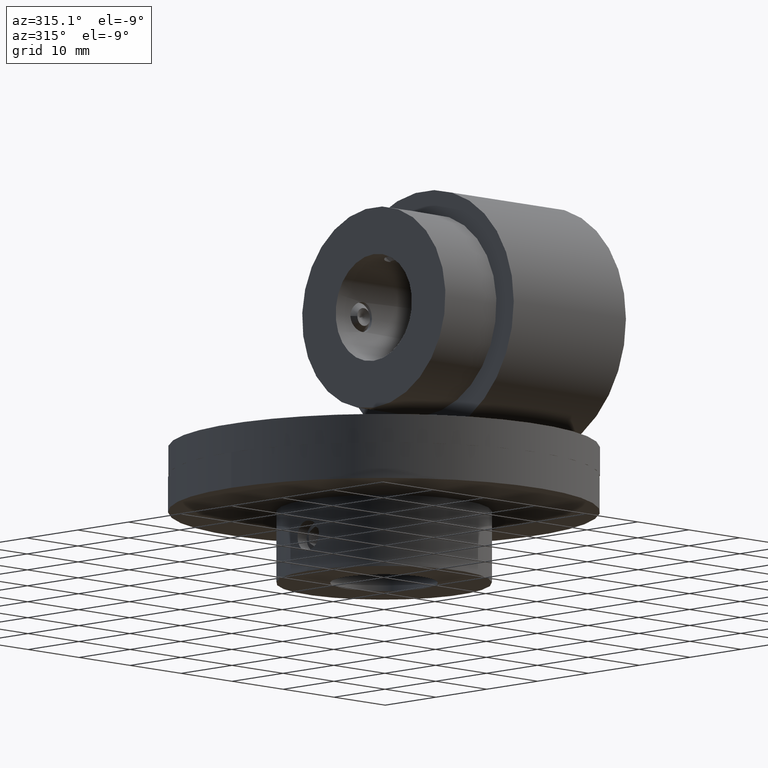
[diagram: clean part render]
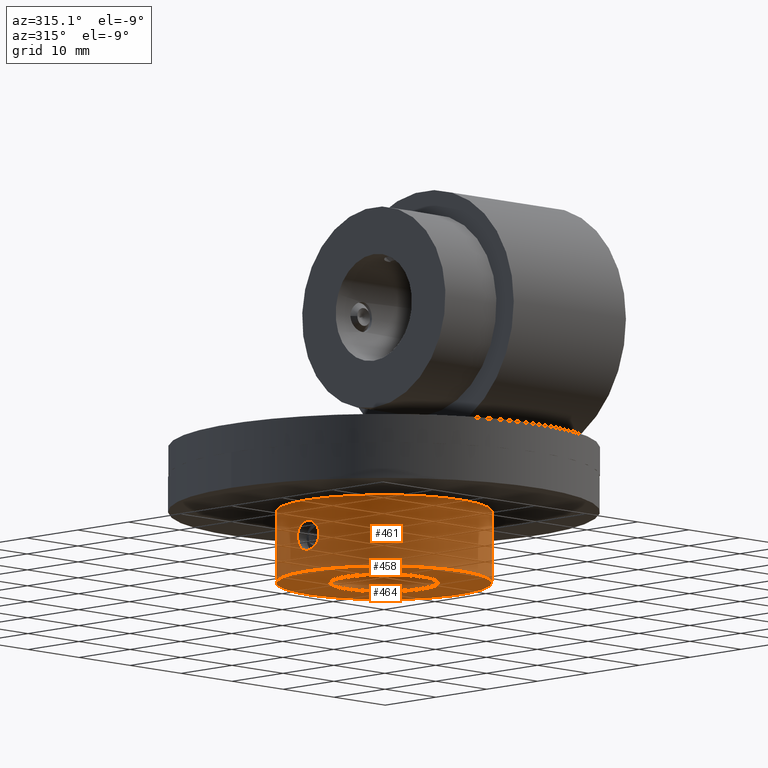
[diagram: same view with one multi-face feature highlighted, each face labeled with its STEP entity id]
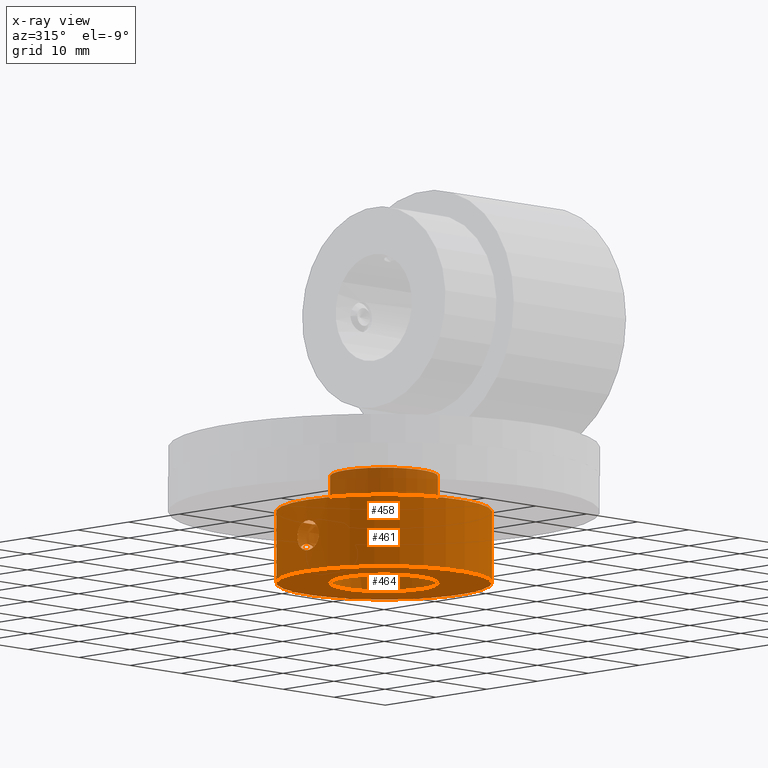
[diagram: x-ray of the same camera — body ghosted, the whole feature saturated]
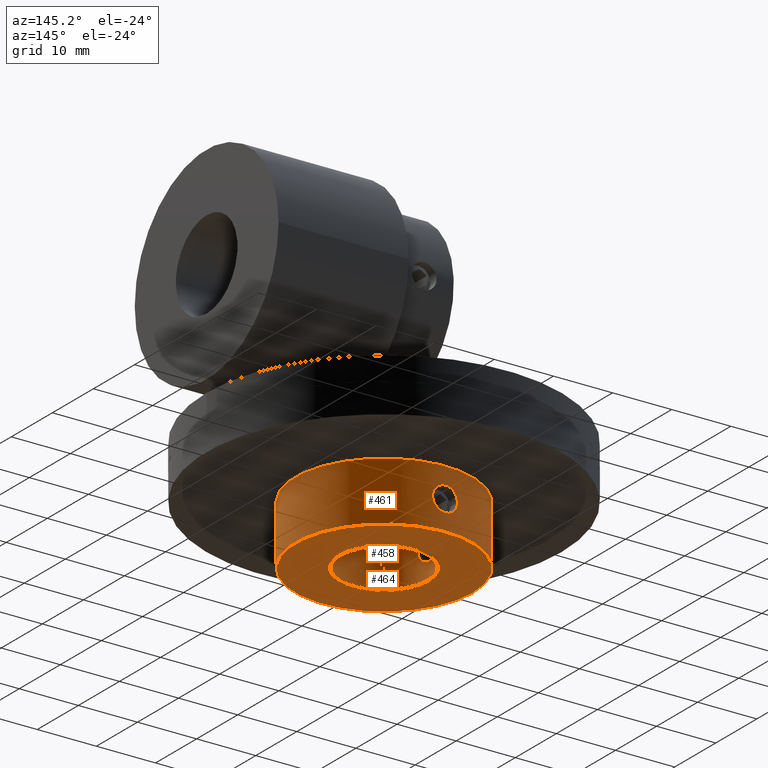
[diagram: same view with one multi-face feature highlighted, each face labeled with its STEP entity id]
A machine part, auxiliary view. The highlighted faces form ONE feature: a stepped (counterbored) hole: 2 coaxial cylindrical walls of radii 7.5 -> 15 mm joined by 1 annular planar shoulder face(s). The faces share edges in the B-rep.
The next image is the same camera in x-ray: the body ghosted and the whole hole feature saturated, so the bore chain is visible through the body.
A second angle (auxiliary view) of the same feature is appended — it is thin or edge-on in the first view.
Their STEP definitions:
[1] entity #461 (Cylinder):
#461 = ADVANCED_FACE( '', ( #560, #561, #562, #563 ), #564, .T. );
#560 = FACE_BOUND( '', #744, .T. );
#561 = FACE_BOUND( '', #745, .T. );
#562 = FACE_OUTER_BOUND( '', #746, .T. );
#563 = FACE_OUTER_BOUND( '', #747, .T. );
#564 = CYLINDRICAL_SURFACE( '', #748, 15.0000000000000 );
#744 = EDGE_LOOP( '', ( #944 ) );
#745 = EDGE_LOOP( '', ( #945 ) );
#746 = EDGE_LOOP( '', ( #946 ) );
#747 = EDGE_LOOP( '', ( #947 ) );
#748 = AXIS2_PLACEMENT_3D( '', #948, #949, #950 );
#944 = ORIENTED_EDGE( '', *, *, #1345, .T. );
#945 = ORIENTED_EDGE( '', *, *, #1344, .T. );
#946 = ORIENTED_EDGE( '', *, *, #1346, .F. );
#947 = ORIENTED_EDGE( '', *, *, #1347, .T. );
#948 = CARTESIAN_POINT( '', ( 0.000000000000000, 0.000000000000000, 17.5000000000000 ) );
#949 = DIRECTION( '', ( -0.000000000000000, -0.000000000000000, 1.00000000000000 ) );
#950 = DIRECTION( '', ( 1.00000000000000, -1.22460635382238E-016, 0.000000000000000 ) );
#1344 = EDGE_CURVE( '', #1470, #1470, #1471, .T. );
#1345 = EDGE_CURVE( '', #1472, #1472, #1473, .T. );
#1346 = EDGE_CURVE( '', #1474, #1474, #1475, .T. );
#1347 = EDGE_CURVE( '', #1476, #1476, #1477, .T. );
#1470 = VERTEX_POINT( '', #1784 );
#1471 = B_SPLINE_CURVE_WITH_KNOTS( '', 3, ( #1785, #1786, #1787, #1788, #1789, #1790, #1791, #1792, #1793, #1794, #1795, #1796, #1797, #1798, #1799, #1800, #1801, #1802, #1803, #1804, #1805, #1806, #1807, #1808, #1809, #1810, #1811, #1812, #1813, #1814, #1815, #1816, #1817, #1818, #1819, #1820, #1821, #1822, #1823, #1824, #1825, #1826, #1827, #1828, #1829, #1830, #1831, #1832, #1833, #1834, #1835, #1836, #1837, #1838, #1839, #1840 ), .UNSPECIFIED., .T., .F., ( 2, 2, 2, 2, 2, 2, 2, 2, 2, 2, 2, 2, 2, 2, 2, 2, 2, 2, 2, 2, 2, 2, 2, 2, 2, 2, 2, 2, 2, 2 ), ( -0.000821603352972537, 0.000000000000000, 0.000410801676486272, 0.000821603352972543, 0.00123240502945881, 0.00164320670594509, 0.00246481005891763, 0.00328641341189017, 0.00369721508837643, 0.00410801676486270, 0.00451881844134897, 0.00492962011783524, 0.00534042179432151, 0.00575122347080778, 0.00616202514729405, 0.00657282682378032, 0.00739443017675286, 0.00780523185323913, 0.00821603352972540, 0.00862683520621167, 0.00903763688269794, 0.00944843855918421, 0.00985924023567048, 0.0102700419121568, 0.0106808435886430, 0.0110916452651293, 0.0115024469416156, 0.0123240502945881, 0.0131456536475606, 0.0135564553240469 ), .UNSPECIFIED. );
#1472 = VERTEX_POINT( '', #1841 );
#1473 = B_SPLINE_CURVE_WITH_KNOTS( '', 3, ( #1842, #1843, #1844, #1845, #1846, #1847, #1848, #1849, #1850, #1851, #1852, #1853, #1854, #1855, #1856, #1857, #1858, #1859, #1860, #1861, #1862, #1863, #1864, #1865, #1866, #1867, #1868, #1869, #1870, #1871, #1872, #1873, #1874, #1875, #1876, #1877, #1878, #1879, #1880, #1881, #1882, #1883, #1884, #1885, #1886, #1887, #1888, #1889, #1890, #1891, #1892, #1893, #1894, #1895, #1896, #1897 ), .UNSPECIFIED., .T., .F., ( 2, 2, 2, 2, 2, 2, 2, 2, 2, 2, 2, 2, 2, 2, 2, 2, 2, 2, 2, 2, 2, 2, 2, 2, 2, 2, 2, 2, 2, 2 ), ( -0.000821603352972538, 0.000000000000000, 0.000410801676486271, 0.000821603352972543, 0.00123240502945881, 0.00164320670594509, 0.00246481005891762, 0.00328641341189016, 0.00369721508837643, 0.00410801676486270, 0.00451881844134897, 0.00492962011783524, 0.00534042179432151, 0.00575122347080778, 0.00616202514729405, 0.00657282682378032, 0.00739443017675286, 0.00780523185323913, 0.00821603352972539, 0.00862683520621167, 0.00903763688269794, 0.00944843855918421, 0.00985924023567048, 0.0102700419121567, 0.0106808435886430, 0.0110916452651293, 0.0115024469416156, 0.0123240502945881, 0.0131456536475606, 0.0135564553240469 ), .UNSPECIFIED. );
#1474 = VERTEX_POINT( '', #1898 );
#1475 = CIRCLE( '', #1899, 15.0000000000000 );
#1476 = VERTEX_POINT( '', #1900 );
#1477 = CIRCLE( '', #1901, 15.0000000000000 );
#1784 = CARTESIAN_POINT( '', ( -14.8522725533839, -2.10000000000000, 12.5000000000000 ) );
#1785 = CARTESIAN_POINT( '', ( -14.8522725533839, -2.10000000000000, 12.7778378907324 ) );
#1786 = CARTESIAN_POINT( '', ( -14.8522725533839, -2.10000000000000, 12.3610810546338 ) );
#1787 = CARTESIAN_POINT( '', ( -14.8542204500736, -2.08635151276940, 12.2245180858566 ) );
#1788 = CARTESIAN_POINT( '', ( -14.8616290817547, -2.03290650315306, 11.9559006806719 ) );
#1789 = CARTESIAN_POINT( '', ( -14.8671777857236, -1.99244889192282, 11.8224413460648 ) );
#1790 = CARTESIAN_POINT( '', ( -14.8809311568780, -1.88698590442380, 11.5682154149414 ) );
#1791 = CARTESIAN_POINT( '', ( -14.8890722858838, -1.82247402116182, 11.4476663378272 ) );
#1792 = CARTESIAN_POINT( '', ( -14.9069342648369, -1.67008859522858, 11.2195228317384 ) );
#1793 = CARTESIAN_POINT( '', ( -14.9167118280961, -1.58150558693305, 11.1116361513458 ) );
#1794 = CARTESIAN_POINT( '', ( -14.9455814970838, -1.29127861047529, 10.8214720910482 ) );
#1795 = CARTESIAN_POINT( '', ( -14.9648319428842, -1.05726121392647, 10.6650635412548 ) );
#1796 = CARTESIAN_POINT( '', ( -14.9919728032100, -0.552039691555255, 10.4554841010515 ) );
#1797 = CARTESIAN_POINT( '', ( -14.9999783968075, -0.275458407414224, 10.4001543085418 ) );
#1798 = CARTESIAN_POINT( '', ( -15.0000107321039, 0.135960827057759, 10.3999233421031 ) );
#1799 = CARTESIAN_POINT( '', ( -14.9980793158239, 0.275285483138546, 10.4135942472969 ) );
#1800 = CARTESIAN_POINT( '', ( -14.9907111751210, 0.544741888488198, 10.4672365270239 ) );
#1801 = CARTESIAN_POINT( '', ( -14.9853136530722, 0.675727983150398, 10.5069243534254 ) );
#1802 = CARTESIAN_POINT( '', ( -14.9716729120384, 0.930184822011966, 10.6122195474367 ) );
#1803 = CARTESIAN_POINT( '', ( -14.9634342008036, 1.05291911745352, 10.6778988190286 ) );
#1804 = CARTESIAN_POINT( '', ( -14.9456979745135, 1.28027879944217, 10.8297971448667 ) );
#1805 = CARTESIAN_POINT( '', ( -14.9361098570476, 1.38647291293803, 10.9166935626267 ) );
#1806 = CARTESIAN_POINT( '', ( -14.9166322601423, 1.58232955347063, 11.1124123101036 ) );
#1807 = CARTESIAN_POINT( '', ( -14.9070443942181, 1.66909845078462, 11.2182821475108 ) );
#1808 = CARTESIAN_POINT( '', ( -14.8892287894239, 1.82118869582327, 11.4455038994824 ) );
#1809 = CARTESIAN_POINT( '', ( -14.8809241039296, 1.88704082981921, 11.5683342171010 ) );
#1810 = CARTESIAN_POINT( '', ( -14.8671768866817, 1.99245494313765, 11.8224695401711 ) );
#1811 = CARTESIAN_POINT( '', ( -14.8617187545363, 2.03225386632195, 11.9533590563559 ) );
#1812 = CARTESIAN_POINT( '', ( -14.8542493241126, 2.08614887609154, 12.2227727191803 ) );
#1813 = CARTESIAN_POINT( '', ( -14.8522799614220, 2.09994760656713, 12.3620713393207 ) );
#1814 = CARTESIAN_POINT( '', ( -14.8522578019481, 2.10010432969559, 12.7734572497650 ) );
#1815 = CARTESIAN_POINT( '', ( -14.8603122806796, 2.04505431778949, 13.0500963120322 ) );
#1816 = CARTESIAN_POINT( '', ( -14.8807821840479, 1.88814820695548, 13.4293059923276 ) );
#1817 = CARTESIAN_POINT( '', ( -14.8890173913421, 1.82293902701554, 13.5516216104293 ) );
#1818 = CARTESIAN_POINT( '', ( -14.9069716897022, 1.66977262473685, 13.7809660766069 ) );
#1819 = CARTESIAN_POINT( '', ( -14.9165495758262, 1.58303255528520, 13.8866307084904 ) );
#1820 = CARTESIAN_POINT( '', ( -14.9358078560218, 1.38963556631608, 14.0803954523001 ) );
#1821 = CARTESIAN_POINT( '', ( -14.9455732937636, 1.28175368117417, 14.1690988925624 ) );
#1822 = CARTESIAN_POINT( '', ( -14.9633638667009, 1.05394277414405, 14.3215345841312 ) );
#1823 = CARTESIAN_POINT( '', ( -14.9714673783162, 0.933475937996957, 14.3861559073329 ) );
#1824 = CARTESIAN_POINT( '', ( -14.9851566616531, 0.679185256406278, 14.4919008060309 ) );
#1825 = CARTESIAN_POINT( '', ( -14.9906648965726, 0.545894612415877, 14.5324223506391 ) );
#1826 = CARTESIAN_POINT( '', ( -14.9980358804467, 0.277407098019663, 14.5860936798740 ) );
#1827 = CARTESIAN_POINT( '', ( -14.9999829629520, 0.140659574942759, 14.5998783067547 ) );
#1828 = CARTESIAN_POINT( '', ( -15.0000168140987, -0.137002122711138, 14.6001201007501 ) );
#1829 = CARTESIAN_POINT( '', ( -14.9981077387844, -0.273551502407960, 14.5866073508889 ) );
#1830 = CARTESIAN_POINT( '', ( -14.9907973831351, -0.542272981478748, 14.5333963398244 ) );
#1831 = CARTESIAN_POINT( '', ( -14.9853065406377, -0.675862370671952, 14.4930208633416 ) );
#1832 = CARTESIAN_POINT( '', ( -14.9716788689446, -0.930071989776430, 14.3878263160680 ) );
#1833 = CARTESIAN_POINT( '', ( -14.9635948638776, -1.05068972406123, 14.3234276434071 ) );
#1834 = CARTESIAN_POINT( '', ( -14.9458042112192, -1.27908429214644, 14.1711614645430 ) );
#1835 = CARTESIAN_POINT( '', ( -14.9360535509948, -1.38699809109995, 14.0827005838483 ) );
#1836 = CARTESIAN_POINT( '', ( -14.9071912440548, -1.67734514777568, 13.7928003042033 ) );
#1837 = CARTESIAN_POINT( '', ( -14.8878364694199, -1.83399587071871, 13.5588927813900 ) );
#1838 = CARTESIAN_POINT( '', ( -14.8604566768923, -2.04402616133230, 13.0538518105795 ) );
#1839 = CARTESIAN_POINT( '', ( -14.8522725533839, -2.10000000000000, 12.7778378907324 ) );
#1840 = CARTESIAN_POINT( '', ( -14.8522725533839, -2.10000000000000, 12.3610810546338 ) );
#1841 = CARTESIAN_POINT( '', ( -2.10000000000000, 14.8522725533839, 12.5000000000000 ) );
#1842 = CARTESIAN_POINT( '', ( -2.10000000000000, 14.8522725533839, 12.7778378907324 ) );
#1843 = CARTESIAN_POINT( '', ( -2.10000000000000, 14.8522725533839, 12.3610810546338 ) );
#1844 = CARTESIAN_POINT( '', ( -2.08635151276940, 14.8542204500736, 12.2245180858566 ) );
#1845 = CARTESIAN_POINT( '', ( -2.03290650315306, 14.8616290817547, 11.9559006806719 ) );
#1846 = CARTESIAN_POINT( '', ( -1.99244889192283, 14.8671777857236, 11.8224413460648 ) );
#1847 = CARTESIAN_POINT( '', ( -1.88698590442380, 14.8809311568780, 11.5682154149414 ) );
#1848 = CARTESIAN_POINT( '', ( -1.82247402116182, 14.8890722858838, 11.4476663378272 ) );
#1849 = CARTESIAN_POINT( '', ( -1.67008859522858, 14.9069342648369, 11.2195228317384 ) );
#1850 = CARTESIAN_POINT( '', ( -1.58150558693305, 14.9167118280961, 11.1116361513458 ) );
#1851 = CARTESIAN_POINT( '', ( -1.29127861047529, 14.9455814970838, 10.8214720910482 ) );
#1852 = CARTESIAN_POINT( '', ( -1.05726121392647, 14.9648319428842, 10.6650635412548 ) );
#1853 = CARTESIAN_POINT( '', ( -0.552039691555253, 14.9919728032100, 10.4554841010514 ) );
#1854 = CARTESIAN_POINT( '', ( -0.275458407414225, 14.9999783968075, 10.4001543085418 ) );
#1855 = CARTESIAN_POINT( '', ( 0.135960827057759, 15.0000107321039, 10.3999233421031 ) );
#1856 = CARTESIAN_POINT( '', ( 0.275285483138546, 14.9980793158239, 10.4135942472969 ) );
#1857 = CARTESIAN_POINT( '', ( 0.544741888488198, 14.9907111751210, 10.4672365270239 ) );
#1858 = CARTESIAN_POINT( '', ( 0.675727983150398, 14.9853136530722, 10.5069243534254 ) );
#1859 = CARTESIAN_POINT( '', ( 0.930184822011966, 14.9716729120384, 10.6122195474367 ) );
#1860 = CARTESIAN_POINT( '', ( 1.05291911745352, 14.9634342008036, 10.6778988190286 ) );
#1861 = CARTESIAN_POINT( '', ( 1.28027879944217, 14.9456979745135, 10.8297971448667 ) );
#1862 = CARTESIAN_POINT( '', ( 1.38647291293803, 14.9361098570476, 10.9166935626267 ) );
#1863 = CARTESIAN_POINT( '', ( 1.58232955347063, 14.9166322601423, 11.1124123101036 ) );
#1864 = CARTESIAN_POINT( '', ( 1.66909845078462, 14.9070443942182, 11.2182821475108 ) );
#1865 = CARTESIAN_POINT( '', ( 1.82118869582327, 14.8892287894239, 11.4455038994824 ) );
#1866 = CARTESIAN_POINT( '', ( 1.88704082981921, 14.8809241039296, 11.5683342171010 ) );
#1867 = CARTESIAN_POINT( '', ( 1.99245494313765, 14.8671768866817, 11.8224695401711 ) );
#1868 = CARTESIAN_POINT( '', ( 2.03225386632195, 14.8617187545363, 11.9533590563559 ) );
#1869 = CARTESIAN_POINT( '', ( 2.08614887609154, 14.8542493241126, 12.2227727191803 ) );
#1870 = CARTESIAN_POINT( '', ( 2.09994760656713, 14.8522799614220, 12.3620713393207 ) );
#1871 = CARTESIAN_POINT( '', ( 2.10010432969559, 14.8522578019481, 12.7734572497650 ) );
#1872 = CARTESIAN_POINT( '', ( 2.04505431778949, 14.8603122806796, 13.0500963120322 ) );
#1873 = CARTESIAN_POINT( '', ( 1.88814820695547, 14.8807821840479, 13.4293059923276 ) );
#1874 = CARTESIAN_POINT( '', ( 1.82293902701554, 14.8890173913421, 13.5516216104293 ) );
#1875 = CARTESIAN_POINT( '', ( 1.66977262473685, 14.9069716897022, 13.7809660766069 ) );
#1876 = CARTESIAN_POINT( '', ( 1.58303255528520, 14.9165495758262, 13.8866307084904 ) );
#1877 = CARTESIAN_POINT( '', ( 1.38963556631608, 14.9358078560218, 14.0803954523001 ) );
#1878 = CARTESIAN_POINT( '', ( 1.28175368117417, 14.9455732937636, 14.1690988925624 ) );
#1879 = CARTESIAN_POINT( '', ( 1.05394277414405, 14.9633638667009, 14.3215345841312 ) );
#1880 = CARTESIAN_POINT( '', ( 0.933475937996958, 14.9714673783162, 14.3861559073329 ) );
#1881 = CARTESIAN_POINT( '', ( 0.679185256406277, 14.9851566616531, 14.4919008060309 ) );
#1882 = CARTESIAN_POINT( '', ( 0.545894612415876, 14.9906648965726, 14.5324223506391 ) );
#1883 = CARTESIAN_POINT( '', ( 0.277407098019662, 14.9980358804467, 14.5860936798740 ) );
#1884 = CARTESIAN_POINT( '', ( 0.140659574942757, 14.9999829629520, 14.5998783067547 ) );
#1885 = CARTESIAN_POINT( '', ( -0.137002122711141, 15.0000168140987, 14.6001201007501 ) );
#1886 = CARTESIAN_POINT( '', ( -0.273551502407962, 14.9981077387844, 14.5866073508889 ) );
#1887 = CARTESIAN_POINT( '', ( -0.542272981478751, 14.9907973831351, 14.5333963398244 ) );
#1888 = CARTESIAN_POINT( '', ( -0.675862370671954, 14.9853065406377, 14.4930208633416 ) );
#1889 = CARTESIAN_POINT( '', ( -0.930071989776433, 14.9716788689447, 14.3878263160679 ) );
#1890 = CARTESIAN_POINT( '', ( -1.05068972406123, 14.9635948638776, 14.3234276434071 ) );
#1891 = CARTESIAN_POINT( '', ( -1.27908429214644, 14.9458042112192, 14.1711614645430 ) );
#1892 = CARTESIAN_POINT( '', ( -1.38699809109996, 14.9360535509948, 14.0827005838483 ) );
#1893 = CARTESIAN_POINT( '', ( -1.67734514777568, 14.9071912440548, 13.7928003042033 ) );
#1894 = CARTESIAN_POINT( '', ( -1.83399587071871, 14.8878364694199, 13.5588927813900 ) );
#1895 = CARTESIAN_POINT( '', ( -2.04402616133230, 14.8604566768923, 13.0538518105795 ) );
#1896 = CARTESIAN_POINT( '', ( -2.10000000000000, 14.8522725533839, 12.7778378907324 ) );
#1897 = CARTESIAN_POINT( '', ( -2.10000000000000, 14.8522725533839, 12.3610810546338 ) );
#1898 = CARTESIAN_POINT( '', ( -15.0000000000000, 1.83690953073357E-015, 17.5000000000000 ) );
#1899 = AXIS2_PLACEMENT_3D( '', #2490, #2491, #2492 );
#1900 = CARTESIAN_POINT( '', ( -15.0000000000000, 1.83690953073357E-015, 7.50000000000000 ) );
#1901 = AXIS2_PLACEMENT_3D( '', #2493, #2494, #2495 );
#2490 = CARTESIAN_POINT( '', ( 0.000000000000000, 0.000000000000000, 17.5000000000000 ) );
#2491 = DIRECTION( '', ( 0.000000000000000, 0.000000000000000, 1.00000000000000 ) );
#2492 = DIRECTION( '', ( -1.00000000000000, 1.22460635382238E-016, 0.000000000000000 ) );
#2493 = CARTESIAN_POINT( '', ( 0.000000000000000, 0.000000000000000, 7.50000000000000 ) );
#2494 = DIRECTION( '', ( 0.000000000000000, 0.000000000000000, 1.00000000000000 ) );
#2495 = DIRECTION( '', ( -1.00000000000000, 1.22460635382238E-016, 0.000000000000000 ) );
[2] entity #458 (Cylinder):
#458 = ADVANCED_FACE( '', ( #549, #550, #551, #552 ), #553, .F. );
#549 = FACE_BOUND( '', #733, .T. );
#550 = FACE_BOUND( '', #734, .T. );
#551 = FACE_OUTER_BOUND( '', #735, .T. );
#552 = FACE_OUTER_BOUND( '', #736, .T. );
#553 = CYLINDRICAL_SURFACE( '', #737, 7.50000000000000 );
#733 = EDGE_LOOP( '', ( #927 ) );
#734 = EDGE_LOOP( '', ( #928 ) );
#735 = EDGE_LOOP( '', ( #929 ) );
#736 = EDGE_LOOP( '', ( #930 ) );
#737 = AXIS2_PLACEMENT_3D( '', #931, #932, #933 );
#927 = ORIENTED_EDGE( '', *, *, #1340, .T. );
#928 = ORIENTED_EDGE( '', *, *, #1341, .T. );
#929 = ORIENTED_EDGE( '', *, *, #1342, .F. );
#930 = ORIENTED_EDGE( '', *, *, #1343, .F. );
#931 = CARTESIAN_POINT( '', ( 0.000000000000000, 0.000000000000000, 7.49999999999454 ) );
#932 = DIRECTION( '', ( -0.000000000000000, -0.000000000000000, -1.00000000000000 ) );
#933 = DIRECTION( '', ( -1.00000000000000, 1.22460635382238E-016, 0.000000000000000 ) );
#1340 = EDGE_CURVE( '', #1462, #1462, #1463, .T. );
#1341 = EDGE_CURVE( '', #1464, #1464, #1465, .T. );
#1342 = EDGE_CURVE( '', #1466, #1466, #1467, .T. );
#1343 = EDGE_CURVE( '', #1468, #1468, #1469, .T. );
#1462 = VERTEX_POINT( '', #1662 );
#1463 = B_SPLINE_CURVE_WITH_KNOTS( '', 3, ( #1663, #1664, #1665, #1666, #1667, #1668, #1669, #1670, #1671, #1672, #1673, #1674, #1675, #1676, #1677, #1678, #1679, #1680, #1681, #1682, #1683, #1684, #1685, #1686, #1687, #1688, #1689, #1690, #1691, #1692, #1693, #1694, #1695, #1696, #1697, #1698, #1699, #1700, #1701, #1702, #1703, #1704, #1705, #1706, #1707, #1708, #1709, #1710, #1711, #1712, #1713, #1714, #1715, #1716, #1717, #1718, #1719, #1720 ), .UNSPECIFIED., .T., .F., ( 2, 2, 2, 2, 2, 2, 2, 2, 2, 2, 2, 2, 2, 2, 2, 2, 2, 2, 2, 2, 2, 2, 2, 2, 2, 2, 2, 2, 2, 2, 2 ), ( -0.000412356743134421, 0.000000000000000, 0.000412356743134417, 0.000824713486268835, 0.00123707022940325, 0.00164942697253767, 0.00247414045880650, 0.00288649720194092, 0.00329885394507534, 0.00371121068820976, 0.00412356743134417, 0.00494828091761301, 0.00536063766074743, 0.00577299440388185, 0.00618535114701627, 0.00659770789015069, 0.00742242137641953, 0.00783477811955395, 0.00824713486268837, 0.00865949160582279, 0.00907184834895721, 0.00948420509209163, 0.00989656183522605, 0.0103089185783605, 0.0107212753214949, 0.0115459888077637, 0.0119583455508982, 0.0123707022940326, 0.0127830590371670, 0.0131954157803014, 0.0136077725234358 ), .UNSPECIFIED. );
#1464 = VERTEX_POINT( '', #1721 );
#1465 = B_SPLINE_CURVE_WITH_KNOTS( '', 3, ( #1722, #1723, #1724, #1725, #1726, #1727, #1728, #1729, #1730, #1731, #1732, #1733, #1734, #1735, #1736, #1737, #1738, #1739, #1740, #1741, #1742, #1743, #1744, #1745, #1746, #1747, #1748, #1749, #1750, #1751, #1752, #1753, #1754, #1755, #1756, #1757, #1758, #1759, #1760, #1761, #1762, #1763, #1764, #1765, #1766, #1767, #1768, #1769, #1770, #1771, #1772, #1773, #1774, #1775, #1776, #1777, #1778, #1779 ), .UNSPECIFIED., .T., .F., ( 2, 2, 2, 2, 2, 2, 2, 2, 2, 2, 2, 2, 2, 2, 2, 2, 2, 2, 2, 2, 2, 2, 2, 2, 2, 2, 2, 2, 2, 2, 2 ), ( -0.000412356743134422, 0.000000000000000, 0.000412356743134417, 0.000824713486268834, 0.00123707022940325, 0.00164942697253767, 0.00247414045880650, 0.00288649720194092, 0.00329885394507534, 0.00371121068820976, 0.00412356743134417, 0.00494828091761301, 0.00536063766074743, 0.00577299440388185, 0.00618535114701627, 0.00659770789015069, 0.00742242137641953, 0.00783477811955395, 0.00824713486268836, 0.00865949160582279, 0.00907184834895720, 0.00948420509209163, 0.00989656183522604, 0.0103089185783605, 0.0107212753214949, 0.0115459888077637, 0.0119583455508981, 0.0123707022940326, 0.0127830590371670, 0.0131954157803014, 0.0136077725234358 ), .UNSPECIFIED. );
#1466 = VERTEX_POINT( '', #1780 );
#1467 = CIRCLE( '', #1781, 7.50000000000000 );
#1468 = VERTEX_POINT( '', #1782 );
#1469 = CIRCLE( '', #1783, 7.50000000000000 );
#1662 = CARTESIAN_POINT( '', ( -2.10000000000000, 7.20000000000000, 12.5000000000000 ) );
#1663 = CARTESIAN_POINT( '', ( -2.10000000000000, 7.20000000000000, 12.3605107938321 ) );
#1664 = CARTESIAN_POINT( '', ( -2.10000000000000, 7.20000000000000, 12.6394892061679 ) );
#1665 = CARTESIAN_POINT( '', ( -2.08624141425508, 7.20405292183741, 12.7765001193688 ) );
#1666 = CARTESIAN_POINT( '', ( -2.03247152548171, 7.21940726357041, 13.0458159512785 ) );
#1667 = CARTESIAN_POINT( '', ( -1.99176301240557, 7.23089683665999, 13.1795512861706 ) );
#1668 = CARTESIAN_POINT( '', ( -1.88613745269944, 7.25916486033558, 13.4334855958436 ) );
#1669 = CARTESIAN_POINT( '', ( -1.82160561800035, 7.27584273033177, 13.5538120024075 ) );
#1670 = CARTESIAN_POINT( '', ( -1.66926104293246, 7.31229799957579, 13.7815359278992 ) );
#1671 = CARTESIAN_POINT( '', ( -1.58109524570127, 7.33210722230695, 13.8887741773826 ) );
#1672 = CARTESIAN_POINT( '', ( -1.29209752465871, 7.39047481345485, 14.1777090193910 ) );
#1673 = CARTESIAN_POINT( '', ( -1.05895231396170, 7.42920456576749, 14.3339464224243 ) );
#1674 = CARTESIAN_POINT( '', ( -0.680324748496841, 7.47015885757452, 14.4914424690346 ) );
#1675 = CARTESIAN_POINT( '', ( -0.547223766400327, 7.48124435787328, 14.5321655801672 ) );
#1676 = CARTESIAN_POINT( '', ( -0.275817185663429, 7.49615874116983, 14.5864025680156 ) );
#1677 = CARTESIAN_POINT( '', ( -0.139088828993861, 7.49997516328392, 14.5999112974258 ) );
#1678 = CARTESIAN_POINT( '', ( 0.136397298538488, 7.50002459523821, 14.6000878401531 ) );
#1679 = CARTESIAN_POINT( '', ( 0.276342034083102, 7.49612586812794, 14.5862824842490 ) );
#1680 = CARTESIAN_POINT( '', ( 0.546253217622568, 7.48130171646987, 14.5323747061313 ) );
#1681 = CARTESIAN_POINT( '', ( 0.677525934890560, 7.47043684215665, 14.4924963713475 ) );
#1682 = CARTESIAN_POINT( '', ( 1.06028447708312, 7.42910955956768, 14.3336110702069 ) );
#1683 = CARTESIAN_POINT( '', ( 1.29096145516466, 7.39071258413548, 14.1789240274775 ) );
#1684 = CARTESIAN_POINT( '', ( 1.58211798095359, 7.33189649336024, 13.8877119789545 ) );
#1685 = CARTESIAN_POINT( '', ( 1.66851560087141, 7.31246627832060, 13.7824574954914 ) );
#1686 = CARTESIAN_POINT( '', ( 1.82052806664201, 7.27611056406483, 13.5556131377839 ) );
#1687 = CARTESIAN_POINT( '', ( 1.88651365880559, 7.25906560673442, 13.4326624097016 ) );
#1688 = CARTESIAN_POINT( '', ( 1.99175451888434, 7.23089767623899, 13.1794901705207 ) );
#1689 = CARTESIAN_POINT( '', ( 2.03178234349418, 7.21960240900513, 13.0485727651799 ) );
#1690 = CARTESIAN_POINT( '', ( 2.08612427036089, 7.20408800363090, 12.7777716663792 ) );
#1691 = CARTESIAN_POINT( '', ( 2.09994032743777, 7.20001740449555, 12.6383750739554 ) );
#1692 = CARTESIAN_POINT( '', ( 2.10011875546614, 7.19996536299257, 12.2259755987037 ) );
#1693 = CARTESIAN_POINT( '', ( 2.04468999795952, 7.21672065655320, 11.9483520836136 ) );
#1694 = CARTESIAN_POINT( '', ( 1.88719714129923, 7.25888700184066, 11.5687346765157 ) );
#1695 = CARTESIAN_POINT( '', ( 1.82139753734566, 7.27589427214860, 11.4458435424832 ) );
#1696 = CARTESIAN_POINT( '', ( 1.66915173175464, 7.31232240433326, 11.2183341611973 ) );
#1697 = CARTESIAN_POINT( '', ( 1.58275310681679, 7.33175589729408, 11.1130403711656 ) );
#1698 = CARTESIAN_POINT( '', ( 1.38916461625362, 7.37088689396287, 10.9191818326880 ) );
#1699 = CARTESIAN_POINT( '', ( 1.28204427203193, 7.39050129786872, 10.8311839683614 ) );
#1700 = CARTESIAN_POINT( '', ( 1.05552567003761, 7.42623811287658, 10.6794368940365 ) );
#1701 = CARTESIAN_POINT( '', ( 0.935128020331472, 7.44258783786747, 10.6145924008539 ) );
#1702 = CARTESIAN_POINT( '', ( 0.679111269687177, 7.47030026318660, 10.5080075018438 ) );
#1703 = CARTESIAN_POINT( '', ( 0.547492853051491, 7.48120318696443, 10.4679876908438 ) );
#1704 = CARTESIAN_POINT( '', ( 0.278461112463012, 7.49603955149885, 10.4140273593475 ) );
#1705 = CARTESIAN_POINT( '', ( 0.139256433548169, 7.49998522804537, 10.4000527569843 ) );
#1706 = CARTESIAN_POINT( '', ( -0.137660701829193, 7.50001468707597, 10.3999475461538 ) );
#1707 = CARTESIAN_POINT( '', ( -0.274444268015265, 7.49619887339965, 10.4134561805393 ) );
#1708 = CARTESIAN_POINT( '', ( -0.544722473176307, 7.48141661939911, 10.4672033564587 ) );
#1709 = CARTESIAN_POINT( '', ( -0.678772665504259, 7.47030649055486, 10.5080021708056 ) );
#1710 = CARTESIAN_POINT( '', ( -1.05853598732669, 7.42928981401193, 10.6657011433963 ) );
#1711 = CARTESIAN_POINT( '', ( -1.29156685061416, 7.39056797812510, 10.8218936277170 ) );
#1712 = CARTESIAN_POINT( '', ( -1.58059103747306, 7.33221603367517, 11.1106553869412 ) );
#1713 = CARTESIAN_POINT( '', ( -1.66855006607296, 7.31246252574486, 11.2175083547065 ) );
#1714 = CARTESIAN_POINT( '', ( -1.82130699667808, 7.27591975885293, 11.4456352779558 ) );
#1715 = CARTESIAN_POINT( '', ( -1.88578640020033, 7.25925516121940, 11.5658774218837 ) );
#1716 = CARTESIAN_POINT( '', ( -1.99118174927229, 7.23105601445846, 11.8188461411016 ) );
#1717 = CARTESIAN_POINT( '', ( -2.03214941726750, 7.21949857810980, 11.9528514532016 ) );
#1718 = CARTESIAN_POINT( '', ( -2.08623630071849, 7.20405504358444, 12.2231952241586 ) );
#1719 = CARTESIAN_POINT( '', ( -2.10000000000000, 7.20000000000000, 12.3605107938321 ) );
#1720 = CARTESIAN_POINT( '', ( -2.10000000000000, 7.20000000000000, 12.6394892061679 ) );
#1721 = CARTESIAN_POINT( '', ( -7.20000000000000, -2.10000000000000, 12.5000000000000 ) );
#1722 = CARTESIAN_POINT( '', ( -7.20000000000000, -2.10000000000000, 12.3605107938321 ) );
#1723 = CARTESIAN_POINT( '', ( -7.20000000000000, -2.10000000000000, 12.6394892061679 ) );
#1724 = CARTESIAN_POINT( '', ( -7.20405292183741, -2.08624141425508, 12.7765001193688 ) );
#1725 = CARTESIAN_POINT( '', ( -7.21940726357041, -2.03247152548171, 13.0458159512785 ) );
#1726 = CARTESIAN_POINT( '', ( -7.23089683665999, -1.99176301240557, 13.1795512861706 ) );
#1727 = CARTESIAN_POINT( '', ( -7.25916486033558, -1.88613745269944, 13.4334855958436 ) );
#1728 = CARTESIAN_POINT( '', ( -7.27584273033177, -1.82160561800035, 13.5538120024075 ) );
#1729 = CARTESIAN_POINT( '', ( -7.31229799957579, -1.66926104293246, 13.7815359278992 ) );
#1730 = CARTESIAN_POINT( '', ( -7.33210722230695, -1.58109524570127, 13.8887741773826 ) );
#1731 = CARTESIAN_POINT( '', ( -7.39047481345485, -1.29209752465871, 14.1777090193910 ) );
#1732 = CARTESIAN_POINT( '', ( -7.42920456576750, -1.05895231396171, 14.3339464224243 ) );
#1733 = CARTESIAN_POINT( '', ( -7.47015885757452, -0.680324748496840, 14.4914424690346 ) );
#1734 = CARTESIAN_POINT( '', ( -7.48124435787328, -0.547223766400326, 14.5321655801672 ) );
#1735 = CARTESIAN_POINT( '', ( -7.49615874116983, -0.275817185663428, 14.5864025680156 ) );
#1736 = CARTESIAN_POINT( '', ( -7.49997516328392, -0.139088828993859, 14.5999112974258 ) );
#1737 = CARTESIAN_POINT( '', ( -7.50002459523820, 0.136397298538489, 14.6000878401531 ) );
#1738 = CARTESIAN_POINT( '', ( -7.49612586812794, 0.276342034083102, 14.5862824842490 ) );
#1739 = CARTESIAN_POINT( '', ( -7.48130171646987, 0.546253217622569, 14.5323747061313 ) );
#1740 = CARTESIAN_POINT( '', ( -7.47043684215665, 0.677525934890562, 14.4924963713475 ) );
#1741 = CARTESIAN_POINT( '', ( -7.42910955956768, 1.06028447708312, 14.3336110702069 ) );
#1742 = CARTESIAN_POINT( '', ( -7.39071258413548, 1.29096145516466, 14.1789240274775 ) );
#1743 = CARTESIAN_POINT( '', ( -7.33189649336024, 1.58211798095359, 13.8877119789545 ) );
#1744 = CARTESIAN_POINT( '', ( -7.31246627832060, 1.66851560087141, 13.7824574954914 ) );
#1745 = CARTESIAN_POINT( '', ( -7.27611056406484, 1.82052806664201, 13.5556131377839 ) );
#1746 = CARTESIAN_POINT( '', ( -7.25906560673442, 1.88651365880559, 13.4326624097016 ) );
#1747 = CARTESIAN_POINT( '', ( -7.23089767623899, 1.99175451888434, 13.1794901705207 ) );
#1748 = CARTESIAN_POINT( '', ( -7.21960240900513, 2.03178234349418, 13.0485727651799 ) );
#1749 = CARTESIAN_POINT( '', ( -7.20408800363090, 2.08612427036089, 12.7777716663791 ) );
#1750 = CARTESIAN_POINT( '', ( -7.20001740449556, 2.09994032743777, 12.6383750739554 ) );
#1751 = CARTESIAN_POINT( '', ( -7.19996536299257, 2.10011875546614, 12.2259755987038 ) );
#1752 = CARTESIAN_POINT( '', ( -7.21672065655320, 2.04468999795952, 11.9483520836136 ) );
#1753 = CARTESIAN_POINT( '', ( -7.25888700184066, 1.88719714129923, 11.5687346765157 ) );
#1754 = CARTESIAN_POINT( '', ( -7.27589427214859, 1.82139753734566, 11.4458435424832 ) );
#1755 = CARTESIAN_POINT( '', ( -7.31232240433326, 1.66915173175464, 11.2183341611973 ) );
#1756 = CARTESIAN_POINT( '', ( -7.33175589729408, 1.58275310681679, 11.1130403711655 ) );
#1757 = CARTESIAN_POINT( '', ( -7.37088689396287, 1.38916461625362, 10.9191818326880 ) );
#1758 = CARTESIAN_POINT( '', ( -7.39050129786872, 1.28204427203193, 10.8311839683614 ) );
#1759 = CARTESIAN_POINT( '', ( -7.42623811287658, 1.05552567003761, 10.6794368940365 ) );
#1760 = CARTESIAN_POINT( '', ( -7.44258783786747, 0.935128020331472, 10.6145924008539 ) );
#1761 = CARTESIAN_POINT( '', ( -7.47030026318660, 0.679111269687179, 10.5080075018438 ) );
#1762 = CARTESIAN_POINT( '', ( -7.48120318696443, 0.547492853051491, 10.4679876908438 ) );
#1763 = CARTESIAN_POINT( '', ( -7.49603955149885, 0.278461112463013, 10.4140273593475 ) );
#1764 = CARTESIAN_POINT( '', ( -7.49998522804537, 0.139256433548173, 10.4000527569843 ) );
#1765 = CARTESIAN_POINT( '', ( -7.50001468707597, -0.137660701829192, 10.3999475461538 ) );
#1766 = CARTESIAN_POINT( '', ( -7.49619887339965, -0.274444268015263, 10.4134561805393 ) );
#1767 = CARTESIAN_POINT( '', ( -7.48141661939912, -0.544722473176305, 10.4672033564587 ) );
#1768 = CARTESIAN_POINT( '', ( -7.47030649055486, -0.678772665504256, 10.5080021708056 ) );
#1769 = CARTESIAN_POINT( '', ( -7.42928981401194, -1.05853598732669, 10.6657011433963 ) );
#1770 = CARTESIAN_POINT( '', ( -7.39056797812511, -1.29156685061416, 10.8218936277170 ) );
#1771 = CARTESIAN_POINT( '', ( -7.33221603367517, -1.58059103747306, 11.1106553869413 ) );
#1772 = CARTESIAN_POINT( '', ( -7.31246252574486, -1.66855006607296, 11.2175083547065 ) );
#1773 = CARTESIAN_POINT( '', ( -7.27591975885293, -1.82130699667808, 11.4456352779558 ) );
#1774 = CARTESIAN_POINT( '', ( -7.25925516121940, -1.88578640020033, 11.5658774218837 ) );
#1775 = CARTESIAN_POINT( '', ( -7.23105601445847, -1.99118174927229, 11.8188461411016 ) );
#1776 = CARTESIAN_POINT( '', ( -7.21949857810980, -2.03214941726749, 11.9528514532017 ) );
#1777 = CARTESIAN_POINT( '', ( -7.20405504358445, -2.08623630071849, 12.2231952241586 ) );
#1778 = CARTESIAN_POINT( '', ( -7.20000000000000, -2.10000000000000, 12.3605107938321 ) );
#1779 = CARTESIAN_POINT( '', ( -7.20000000000000, -2.10000000000000, 12.6394892061679 ) );
#1780 = CARTESIAN_POINT( '', ( -7.50000000000000, 9.18454765366783E-016, 22.5000000000000 ) );
#1781 = AXIS2_PLACEMENT_3D( '', #2484, #2485, #2486 );
#1782 = CARTESIAN_POINT( '', ( -7.50000000000000, 9.18454765366783E-016, 7.49999999999454 ) );
#1783 = AXIS2_PLACEMENT_3D( '', #2487, #2488, #2489 );
#2484 = CARTESIAN_POINT( '', ( 0.000000000000000, 0.000000000000000, 22.5000000000000 ) );
#2485 = DIRECTION( '', ( 0.000000000000000, 0.000000000000000, -1.00000000000000 ) );
#2486 = DIRECTION( '', ( -1.00000000000000, 1.22460635382238E-016, 0.000000000000000 ) );
#2487 = CARTESIAN_POINT( '', ( 0.000000000000000, 0.000000000000000, 7.49999999999454 ) );
#2488 = DIRECTION( '', ( 0.000000000000000, 0.000000000000000, 1.00000000000000 ) );
#2489 = DIRECTION( '', ( -1.00000000000000, 1.22460635382238E-016, 0.000000000000000 ) );
[3] entity #464 (Plane):
#464 = ADVANCED_FACE( '', ( #571, #572 ), #573, .F. );
#571 = FACE_BOUND( '', #755, .T. );
#572 = FACE_OUTER_BOUND( '', #756, .T. );
#573 = PLANE( '', #757 );
#755 = EDGE_LOOP( '', ( #961 ) );
#756 = EDGE_LOOP( '', ( #962 ) );
#757 = AXIS2_PLACEMENT_3D( '', #963, #964, #965 );
#961 = ORIENTED_EDGE( '', *, *, #1343, .T. );
#962 = ORIENTED_EDGE( '', *, *, #1347, .F. );
#963 = CARTESIAN_POINT( '', ( 0.000000000000000, 0.000000000000000, 7.50000000000000 ) );
#964 = DIRECTION( '', ( 0.000000000000000, 0.000000000000000, 1.00000000000000 ) );
#965 = DIRECTION( '', ( -1.00000000000000, 1.22460635382238E-016, 0.000000000000000 ) );
#1343 = EDGE_CURVE( '', #1468, #1468, #1469, .T. );
#1347 = EDGE_CURVE( '', #1476, #1476, #1477, .T. );
#1468 = VERTEX_POINT( '', #1782 );
#1469 = CIRCLE( '', #1783, 7.50000000000000 );
#1476 = VERTEX_POINT( '', #1900 );
#1477 = CIRCLE( '', #1901, 15.0000000000000 );
#1782 = CARTESIAN_POINT( '', ( -7.50000000000000, 9.18454765366783E-016, 7.49999999999454 ) );
#1783 = AXIS2_PLACEMENT_3D( '', #2487, #2488, #2489 );
#1900 = CARTESIAN_POINT( '', ( -15.0000000000000, 1.83690953073357E-015, 7.50000000000000 ) );
#1901 = AXIS2_PLACEMENT_3D( '', #2493, #2494, #2495 );
#2487 = CARTESIAN_POINT( '', ( 0.000000000000000, 0.000000000000000, 7.49999999999454 ) );
#2488 = DIRECTION( '', ( 0.000000000000000, 0.000000000000000, 1.00000000000000 ) );
#2489 = DIRECTION( '', ( -1.00000000000000, 1.22460635382238E-016, 0.000000000000000 ) );
#2493 = CARTESIAN_POINT( '', ( 0.000000000000000, 0.000000000000000, 7.50000000000000 ) );
#2494 = DIRECTION( '', ( 0.000000000000000, 0.000000000000000, 1.00000000000000 ) );
#2495 = DIRECTION( '', ( -1.00000000000000, 1.22460635382238E-016, 0.000000000000000 ) );